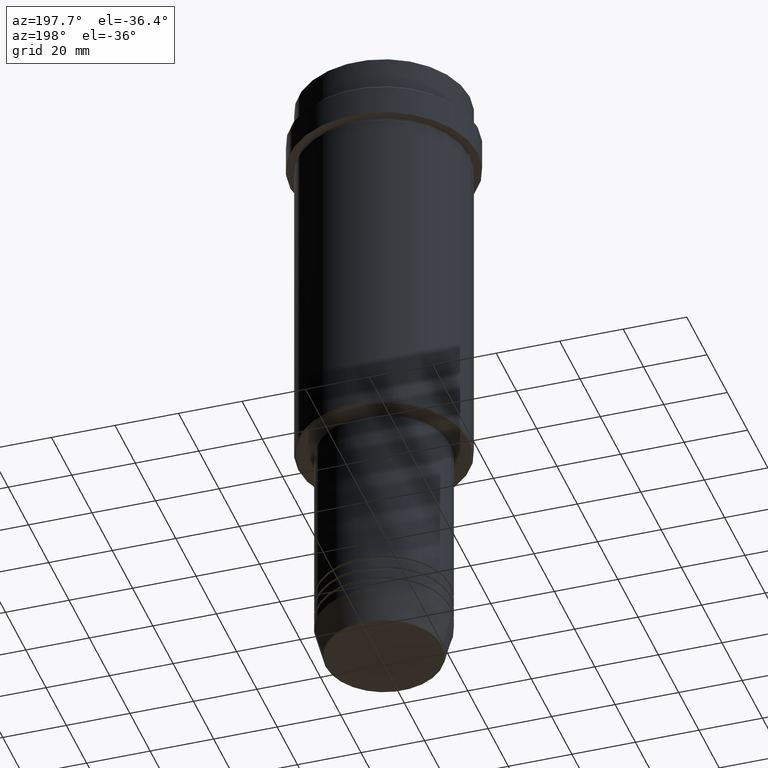
[diagram: clean part render]
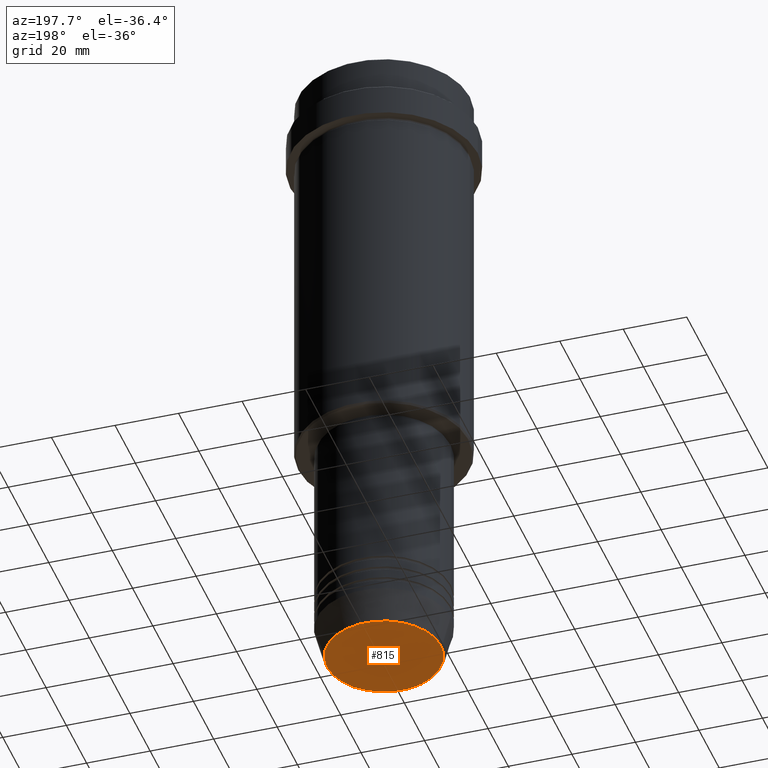
[diagram: same view with one face highlighted and labeled with its STEP entity id]
A machine part, auxiliary view. The second image highlights one B-rep face of the part: STEP entity #815.
In plain terms, the highlighted planar face has unit normal (0, -0, 1).
Its self-contained STEP definition (entity closure, byte-faithful):
#55 = VERTEX_POINT ( 'NONE', #1384 ) ;
#85 = AXIS2_PLACEMENT_3D ( 'NONE', #768, #121, #544 ) ;
#121 = DIRECTION ( 'NONE',  ( 0.000000000000000000, 0.000000000000000000, -1.000000000000000000 ) ) ;
#126 = DIRECTION ( 'NONE',  ( 1.000000000000000000, 0.000000000000000000, 0.000000000000000000 ) ) ;
#264 = ORIENTED_EDGE ( 'NONE', *, *, #620, .T. ) ;
#536 = VERTEX_POINT ( 'NONE', #1229 ) ;
#544 = DIRECTION ( 'NONE',  ( 1.000000000000000000, 0.000000000000000000, 0.000000000000000000 ) ) ;
#567 = ORIENTED_EDGE ( 'NONE', *, *, #1078, .T. ) ;
#598 = AXIS2_PLACEMENT_3D ( 'NONE', #1189, #627, #1072 ) ;
#620 = EDGE_CURVE ( 'NONE', #536, #55, #1265, .T. ) ;
#627 = DIRECTION ( 'NONE',  ( 0.000000000000000000, -0.000000000000000000, 1.000000000000000000 ) ) ;
#632 = FACE_OUTER_BOUND ( 'NONE', #875, .T. ) ;
#656 = CARTESIAN_POINT ( 'NONE',  ( 0.000000000000000000, 0.000000000000000000, -203.0000000000000000 ) ) ;
#768 = CARTESIAN_POINT ( 'NONE',  ( 0.000000000000000000, 0.000000000000000000, -203.0000000000000000 ) ) ;
#789 = DIRECTION ( 'NONE',  ( 0.000000000000000000, 0.000000000000000000, -1.000000000000000000 ) ) ;
#815 = ADVANCED_FACE ( 'NONE', ( #632 ), #1411, .F. ) ;
#875 = EDGE_LOOP ( 'NONE', ( #567, #264 ) ) ;
#942 = AXIS2_PLACEMENT_3D ( 'NONE', #656, #789, #126 ) ;
#1072 = DIRECTION ( 'NONE',  ( 1.000000000000000000, 0.000000000000000000, 0.000000000000000000 ) ) ;
#1078 = EDGE_CURVE ( 'NONE', #55, #536, #1404, .T. ) ;
#1189 = CARTESIAN_POINT ( 'NONE',  ( 0.000000000000000000, 0.000000000000000000, -203.0000000000000000 ) ) ;
#1229 = CARTESIAN_POINT ( 'NONE',  ( -17.93684458169929030, 2.226202879662624346E-15, -203.0000000000000000 ) ) ;
#1265 = CIRCLE ( 'NONE', #85, 17.93684458169929030 ) ;
#1384 = CARTESIAN_POINT ( 'NONE',  ( 17.93684458169929030, 0.000000000000000000, -203.0000000000000000 ) ) ;
#1404 = CIRCLE ( 'NONE', #942, 17.93684458169929030 ) ;
#1411 = PLANE ( 'NONE',  #598 ) ;